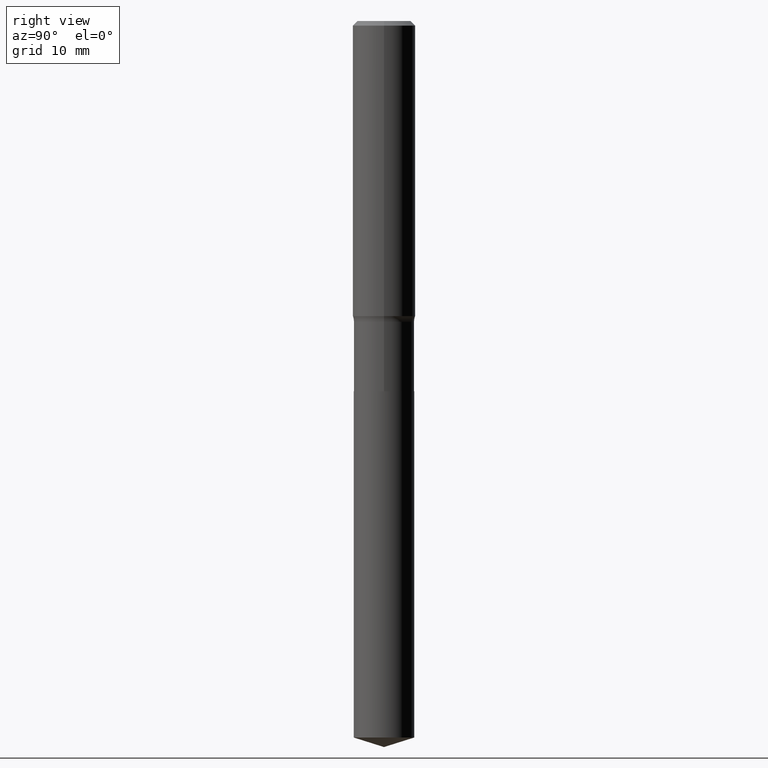
[diagram: clean part render]
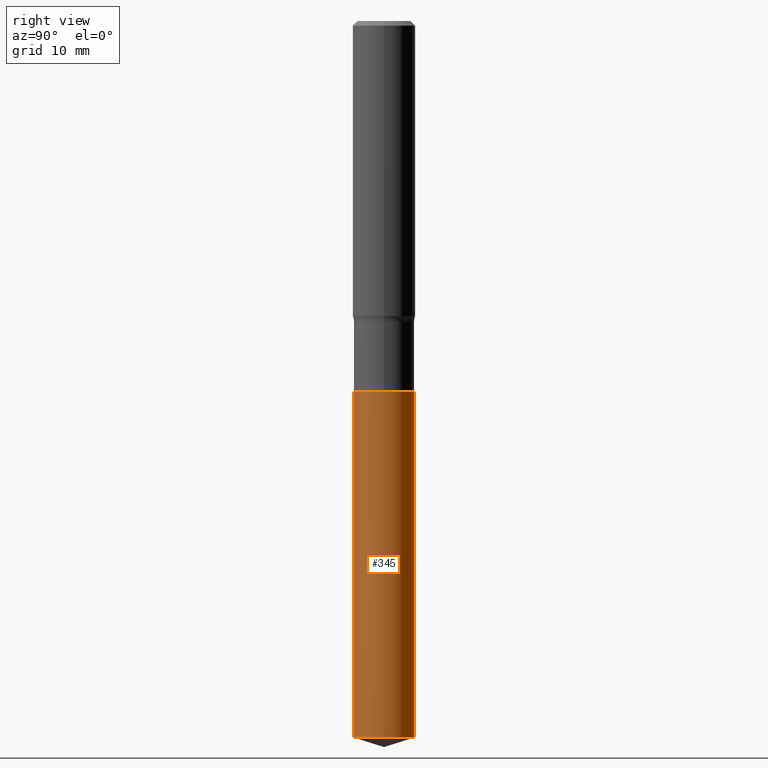
[diagram: same view with one face highlighted and labeled with its STEP entity id]
A machine part, right view. The second image highlights one B-rep face of the part: STEP entity #345.
In plain terms, the highlighted cylindrical surface (edge-blend (fillet) strip) has radius 3.8354 mm, axis along (-0, 0, 1).
Its self-contained STEP definition (entity closure, byte-faithful):
#7 = VECTOR ( 'NONE', #129, 39.37007874015748143 ) ;
#25 = DIRECTION ( 'NONE',  ( -6.982962677686265133E-15, -1.000000000000000000, 3.618341713462600054E-15 ) ) ;
#45 = FACE_OUTER_BOUND ( 'NONE', #226, .T. ) ;
#67 = CIRCLE ( 'NONE', #402, 0.1509999999999999953 ) ;
#70 = VERTEX_POINT ( 'NONE', #277 ) ;
#102 = ORIENTED_EDGE ( 'NONE', *, *, #408, .F. ) ;
#115 = VERTEX_POINT ( 'NONE', #388 ) ;
#129 = DIRECTION ( 'NONE',  ( -2.445468183589495391E-29, 3.491482230435539651E-15, 1.000000000000000000 ) ) ;
#136 = DIRECTION ( 'NONE',  ( -2.445468183589495391E-29, 3.491482230435539651E-15, 1.000000000000000000 ) ) ;
#168 = DIRECTION ( 'NONE',  ( -2.445468183589495391E-29, 3.491482230435539651E-15, 1.000000000000000000 ) ) ;
#169 = DIRECTION ( 'NONE',  ( -6.982962677686266711E-15, -1.000000000000000000, 3.618341713462600054E-15 ) ) ;
#174 = CYLINDRICAL_SURFACE ( 'NONE', #358, 0.1509999999999999953 ) ;
#177 = VECTOR ( 'NONE', #350, 39.37007874015748143 ) ;
#179 = ORIENTED_EDGE ( 'NONE', *, *, #252, .F. ) ;
#185 = AXIS2_PLACEMENT_3D ( 'NONE', #216, #168, #169 ) ;
#215 = ORIENTED_EDGE ( 'NONE', *, *, #229, .T. ) ;
#216 = CARTESIAN_POINT ( 'NONE',  ( 8.748394289993295297E-29, -1.249039155894768275E-14, -3.577389882879273841 ) ) ;
#226 = EDGE_LOOP ( 'NONE', ( #215, #389, #102, #179 ) ) ;
#229 = EDGE_CURVE ( 'NONE', #478, #305, #332, .T. ) ;
#245 = CARTESIAN_POINT ( 'NONE',  ( 1.072919530997796410E-15, 0.1509999999999935560, -1.848900000000000876 ) ) ;
#252 = EDGE_CURVE ( 'NONE', #478, #70, #346, .T. ) ;
#277 = CARTESIAN_POINT ( 'NONE',  ( -1.054427364330580859E-15, -0.1510000000000064346, -1.848899999999999766 ) ) ;
#284 = CARTESIAN_POINT ( 'NONE',  ( -1.054427364330580859E-15, -0.1510000000000064624, -1.848899999999999766 ) ) ;
#305 = VERTEX_POINT ( 'NONE', #468 ) ;
#317 = CARTESIAN_POINT ( 'NONE',  ( 4.521427275755699550E-29, -6.455399847387092276E-15, -1.848900000000000432 ) ) ;
#332 = CIRCLE ( 'NONE', #185, 0.1509999999999999953 ) ;
#336 = EDGE_CURVE ( 'NONE', #305, #115, #390, .T. ) ;
#345 = ADVANCED_FACE ( 'NONE', ( #45 ), #174, .T. ) ;
#346 = LINE ( 'NONE', #284, #7 ) ;
#350 = DIRECTION ( 'NONE',  ( -2.445468183589495391E-29, 3.491482230435539651E-15, 1.000000000000000000 ) ) ;
#357 = CARTESIAN_POINT ( 'NONE',  ( 4.521427275755699550E-29, -6.455399847387092276E-15, -1.848900000000000432 ) ) ;
#358 = AXIS2_PLACEMENT_3D ( 'NONE', #317, #473, #446 ) ;
#388 = CARTESIAN_POINT ( 'NONE',  ( 1.072919530997839008E-15, 0.1509999999999935283, -1.848900000000000876 ) ) ;
#389 = ORIENTED_EDGE ( 'NONE', *, *, #336, .T. ) ;
#390 = LINE ( 'NONE', #245, #177 ) ;
#399 = CARTESIAN_POINT ( 'NONE',  ( -1.054427364330538457E-15, -0.1510000000000124853, -3.577389882879273397 ) ) ;
#402 = AXIS2_PLACEMENT_3D ( 'NONE', #357, #136, #25 ) ;
#408 = EDGE_CURVE ( 'NONE', #70, #115, #67, .T. ) ;
#446 = DIRECTION ( 'NONE',  ( -6.982962677686266711E-15, -1.000000000000000000, 3.618341713462600054E-15 ) ) ;
#468 = CARTESIAN_POINT ( 'NONE',  ( 1.072919530997838614E-15, 0.1509999999999874776, -3.577389882879274285 ) ) ;
#473 = DIRECTION ( 'NONE',  ( -2.445468183589495391E-29, 3.491482230435539651E-15, 1.000000000000000000 ) ) ;
#478 = VERTEX_POINT ( 'NONE', #399 ) ;